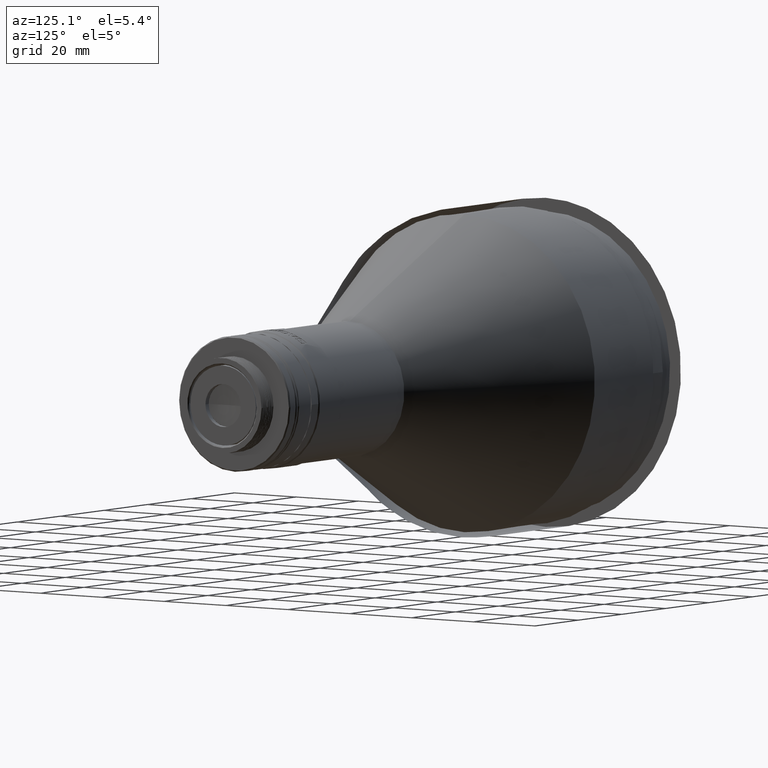
[diagram: clean part render]
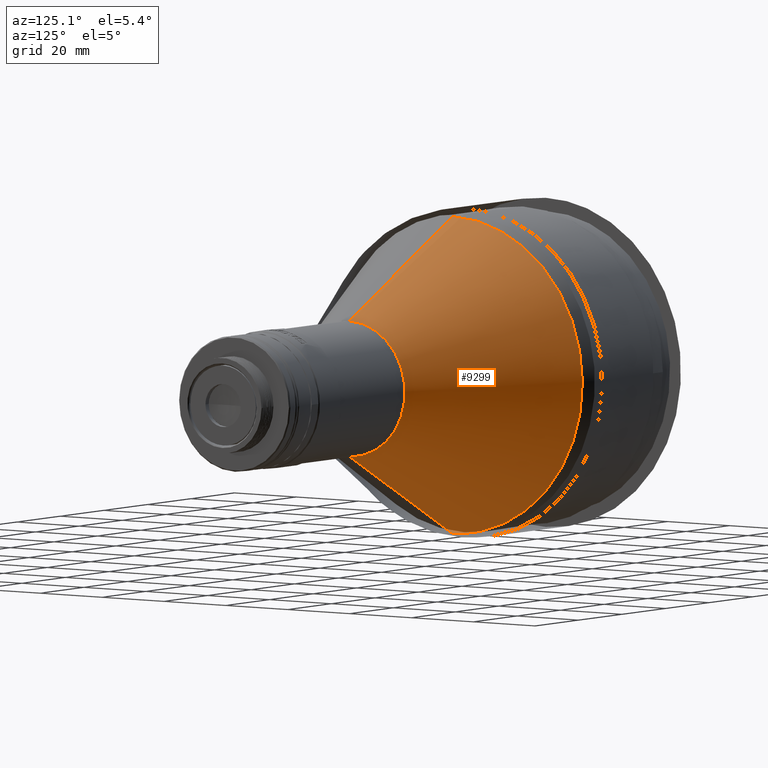
[diagram: same view with one face highlighted and labeled with its STEP entity id]
A machine part, auxiliary view. The second image highlights one B-rep face of the part: STEP entity #9299.
In plain terms, the highlighted conical surface has half-angle 26.96 deg.
Its self-contained STEP definition (entity closure, byte-faithful):
#12 = VERTEX_POINT ( 'NONE', #13295 ) ;
#224 = CARTESIAN_POINT ( 'NONE',  ( 18.97945200263147214, 25.66220231175445221, -130.6613263225026742 ) ) ;
#310 = CARTESIAN_POINT ( 'NONE',  ( 18.97945200263146504, 10.90798865403301043, -123.3870630619717161 ) ) ;
#394 = CARTESIAN_POINT ( 'NONE',  ( 18.97945200263146504, 41.79870194474690237, -169.6182825857016212 ) ) ;
#708 = CARTESIAN_POINT ( 'NONE',  ( 66.30158704593000607, 18.00003612463562064, -162.9291516847491152 ) ) ;
#1136 = EDGE_CURVE ( 'NONE', #14044, #12, #12214, .T. ) ;
#1584 = CARTESIAN_POINT ( 'NONE',  ( 18.97945200263146859, 13.55557670450494889, -124.1902001166408098 ) ) ;
#1680 = CARTESIAN_POINT ( 'NONE',  ( 18.97945200263146148, 21.08335280320911309, -200.6209934865545108 ) ) ;
#1763 = CARTESIAN_POINT ( 'NONE',  ( 18.97945200263147214, 18.64332168135331003, -126.2976130879470134 ) ) ;
#1809 = CARTESIAN_POINT ( 'NONE',  ( 66.30158704592999186, 14.30965264658306424, -153.1281147476998115 ) ) ;
#1899 = CARTESIAN_POINT ( 'NONE',  ( 66.30158704593000607, 2.352086199676878930, -146.2265965447369638 ) ) ;
#1943 = CARTESIAN_POINT ( 'NONE',  ( 18.97945200263147214, 27.80090747736658230, -132.4165162917562952 ) ) ;
#1998 = CARTESIAN_POINT ( 'NONE',  ( 66.30158704592999186, 1.182081923679699109, -146.1114151906819245 ) ) ;
#3041 = CARTESIAN_POINT ( 'NONE',  ( 18.97945200263147214, 21.08335280320920191, -127.6018368946455155 ) ) ;
#3137 = CARTESIAN_POINT ( 'NONE',  ( 18.97945200263146859, 10.90798865403293760, -204.8357673192282959 ) ) ;
#3176 = CARTESIAN_POINT ( 'NONE',  ( 66.30158704592997765, 7.980584661992640605, -180.2888474942251094 ) ) ;
#3180 = ORIENTED_EDGE ( 'NONE', *, *, #6504, .T. ) ;
#3219 = CARTESIAN_POINT ( 'NONE',  ( 18.97945200263146859, 39.92121507395917490, -150.5558384860950980 ) ) ;
#3262 = CARTESIAN_POINT ( 'NONE',  ( 66.30158704593000607, 17.08229761638240163, -169.9074617424242888 ) ) ;
#3978 = VECTOR ( 'NONE', #15026, 1000.000000000000114 ) ;
#4263 = AXIS2_PLACEMENT_3D ( 'NONE', #12881, #7196, #10089 ) ;
#4392 = CARTESIAN_POINT ( 'NONE',  ( 18.97945200263146859, 42.06988814078012240, -161.3579474505912685 ) ) ;
#4482 = CARTESIAN_POINT ( 'NONE',  ( 18.97945200263146148, 31.69489889884367173, -191.9123226679666061 ) ) ;
#4527 = CARTESIAN_POINT ( 'NONE',  ( 66.30158704593002028, 10.98326030337803161, -149.8018226173085452 ) ) ;
#4581 = CARTESIAN_POINT ( 'NONE',  ( 18.97945200263147569, 31.69489889884372857, -136.3105077132334202 ) ) ;
#5847 = CARTESIAN_POINT ( 'NONE',  ( 18.97945200263146148, 40.72435212862823306, -175.0194038446331035 ) ) ;
#5932 = CARTESIAN_POINT ( 'NONE',  ( 18.97945200263146504, 39.92121507395913937, -177.6669918951050136 ) ) ;
#6070 = CARTESIAN_POINT ( 'NONE',  ( 66.30158704592997765, 4.670997960418350026, -181.5349736026176402 ) ) ;
#6112 = CARTESIAN_POINT ( 'NONE',  ( 18.97945200263146859, 40.72435212862826148, -153.2034265365670365 ) ) ;
#6246 = CARTESIAN_POINT ( 'NONE',  ( 66.30158704592999186, 9.017227945625537089, -179.7346685868143084 ) ) ;
#6504 = EDGE_CURVE ( 'NONE', #16063, #12, #11066, .T. ) ;
#6775 = ORIENTED_EDGE ( 'NONE', *, *, #1136, .F. ) ;
#7115 = CARTESIAN_POINT ( 'NONE',  ( 18.97945200263146859, 42.06988814078011529, -166.8648829306088430 ) ) ;
#7196 = DIRECTION ( 'NONE',  ( -1.000000000000000000, 0.000000000000000000, 0.000000000000000000 ) ) ;
#7296 = CARTESIAN_POINT ( 'NONE',  ( 18.97945200263146504, 25.66220231175437405, -197.5615040586973521 ) ) ;
#7340 = CARTESIAN_POINT ( 'NONE',  ( 66.30158704592997765, 9.017268085236654684, -148.4881017211360472 ) ) ;
#7384 = EDGE_CURVE ( 'NONE', #17277, #14044, #8241, .T. ) ;
#7426 = CARTESIAN_POINT ( 'NONE',  ( 66.30158704593000607, 11.89190997511070691, -177.6752982500184146 ) ) ;
#7521 = CARTESIAN_POINT ( 'NONE',  ( 66.30158704592999186, 4.671165392871821531, -146.6879637421073994 ) ) ;
#7607 = CARTESIAN_POINT ( 'NONE',  ( 66.30158704592999186, 5.796046551686935722, -147.0291175741595282 ) ) ;
#7807 = CARTESIAN_POINT ( 'NONE',  ( 18.97945200263105292, 2.619185434200414906E-14, -122.0415270498203881 ) ) ;
#7997 = CARTESIAN_POINT ( 'NONE',  ( 66.30158704593159769, 3.130938416522670205E-16, -182.1114151905180165 ) ) ;
#8232 = CARTESIAN_POINT ( 'NONE',  ( 18.97945200262620347, 0.000000000000000000, -122.0415270498171907 ) ) ;
#8241 = B_SPLINE_CURVE_WITH_KNOTS ( 'NONE', 3,
 ( #11415, #1998, #1899, #7521, #7607, #15676, #7340, #4527, #10230, #13127, #1809, #11772, #14411, #17040, #17120, #10142, #708, #14499, #14228, #8965, #3262, #11684, #17297, #15857, #11594, #7426, #10412, #6246, #3176, #12857, #6070, #17207, #12951, #10316 ),
 .UNSPECIFIED., .F., .F.,
 ( 4, 2, 2, 2, 2, 2, 2, 2, 2, 2, 2, 2, 2, 2, 2, 2, 4 ),
 ( 0.000000000000000000, 0.06250000000000001388, 0.1250000000000000000, 0.1874999999999999722, 0.2499999999999999722, 0.3124999999999999445, 0.3749999999999999445, 0.4375000000000000000, 0.5000000000000000000, 0.5625000000000000000, 0.6250000000000000000, 0.6875000000000000000, 0.7500000000000000000, 0.8125000000000001110, 0.8750000000000001110, 0.9375000000000000000, 1.000000000000000000 ),
 .UNSPECIFIED. ) ;
#8551 = FACE_OUTER_BOUND ( 'NONE', #15593, .T. ) ;
#8569 = CARTESIAN_POINT ( 'NONE',  ( 18.97945200263147214, 33.45008886809729631, -138.4492128788455716 ) ) ;
#8667 = CARTESIAN_POINT ( 'NONE',  ( 18.97945200263146504, 5.506867395101495255, -205.9101171353468942 ) ) ;
#8743 = CARTESIAN_POINT ( 'NONE',  ( 18.97945200263146148, 33.45008886809723947, -189.7736175023544831 ) ) ;
#8965 = CARTESIAN_POINT ( 'NONE',  ( 66.30158704592999186, 17.42345144851313421, -168.7825805834192181 ) ) ;
#9057 = ORIENTED_EDGE ( 'NONE', *, *, #17607, .T. ) ;
#9299 = ADVANCED_FACE ( 'NONE', ( #8551 ), #12645, .F. ) ;
#9588 = LINE ( 'NONE', #8232, #15188 ) ;
#9660 = CARTESIAN_POINT ( 'NONE',  ( 18.97945200262620347, 5.152075385209685475E-15, -206.1813033313827930 ) ) ;
#10008 = CARTESIAN_POINT ( 'NONE',  ( 18.97945200263146504, 18.64332168135323897, -201.9252172932530414 ) ) ;
#10089 = DIRECTION ( 'NONE',  ( 0.000000000000000000, 0.000000000000000000, 1.000000000000000000 ) ) ;
#10142 = CARTESIAN_POINT ( 'NONE',  ( 66.30158704593002028, 17.88474778464811976, -161.7593430860088404 ) ) ;
#10186 = CARTESIAN_POINT ( 'NONE',  ( 18.97945200263147214, 5.506867395101581408, -122.3127132458531179 ) ) ;
#10230 = CARTESIAN_POINT ( 'NONE',  ( 66.30158704592999186, 11.89196106324948232, -150.5474810431861670 ) ) ;
#10316 = CARTESIAN_POINT ( 'NONE',  ( 66.30158704593159769, 3.130938416522670205E-16, -182.1114151905180165 ) ) ;
#10412 = CARTESIAN_POINT ( 'NONE',  ( 66.30158704593002028, 10.98330044298912966, -178.4210678371412655 ) ) ;
#11066 = B_SPLINE_CURVE_WITH_KNOTS ( 'NONE', 3,
 ( #15721, #15454, #10186, #310, #1584, #1763, #3041, #224, #1943, #4581, #8569, #12814, #17080, #3219, #6112, #14273, #4392, #7115, #394, #5847, #5932, #16903, #11453, #8743, #4482, #14088, #7296, #1680, #10008, #15546, #3137, #8667, #14185, #16991 ),
 .UNSPECIFIED., .F., .F.,
 ( 4, 2, 2, 2, 2, 2, 2, 2, 2, 2, 2, 2, 2, 2, 2, 2, 4 ),
 ( 0.000000000000000000, 0.06249999999999998612, 0.1250000000000000000, 0.1875000000000000000, 0.2500000000000000555, 0.3125000000000000555, 0.3750000000000000000, 0.4375000000000000000, 0.5000000000000000000, 0.5625000000000000000, 0.6250000000000000000, 0.6875000000000000000, 0.7499999999999998890, 0.8124999999999998890, 0.8749999999999998890, 0.9375000000000000000, 1.000000000000000000 ),
 .UNSPECIFIED. ) ;
#11415 = CARTESIAN_POINT ( 'NONE',  ( 66.30158704593119978, -1.102182119227605883E-15, -146.1114151906819814 ) ) ;
#11453 = CARTESIAN_POINT ( 'NONE',  ( 18.97945200263146504, 36.50957829595446924, -185.1947679938092506 ) ) ;
#11594 = CARTESIAN_POINT ( 'NONE',  ( 66.30158704593000607, 13.56393414748917436, -176.0033762537816528 ) ) ;
#11684 = CARTESIAN_POINT ( 'NONE',  ( 66.30158704592999186, 16.17736555387257624, -172.0919722038563862 ) ) ;
#11772 = CARTESIAN_POINT ( 'NONE',  ( 66.30158704593002028, 15.62325339617237141, -155.0941872448855463 ) ) ;
#12214 = LINE ( 'NONE', #9660, #3978 ) ;
#12487 = DIRECTION ( 'NONE',  ( -0.8913258760542103198, 0.000000000000000000, 0.4533631906939452061 ) ) ;
#12645 = CONICAL_SURFACE ( 'NONE', #4263, 42.06988814078280114, 0.4705349788148567858 ) ;
#12814 = CARTESIAN_POINT ( 'NONE',  ( 18.97945200263147214, 36.50957829595451898, -143.0280623873908326 ) ) ;
#12857 = CARTESIAN_POINT ( 'NONE',  ( 66.30158704592999186, 5.796018903087922780, -181.1936460572298415 ) ) ;
#12881 = CARTESIAN_POINT ( 'NONE',  ( 18.97945200262620347, 0.000000000000000000, -164.1114151905999847 ) ) ;
#12951 = CARTESIAN_POINT ( 'NONE',  ( 66.30158704592999186, 1.181711700038899027, -182.1114151905181302 ) ) ;
#13127 = CARTESIAN_POINT ( 'NONE',  ( 66.30158704592999186, 13.56388305935039540, -152.2195052154139034 ) ) ;
#13295 = CARTESIAN_POINT ( 'NONE',  ( 18.97945200263130161, 2.018220086284344943E-14, -206.1813033313800076 ) ) ;
#14044 = VERTEX_POINT ( 'NONE', #7997 ) ;
#14088 = CARTESIAN_POINT ( 'NONE',  ( 18.97945200263146859, 27.80090747736652190, -195.8063140894437879 ) ) ;
#14185 = CARTESIAN_POINT ( 'NONE',  ( 18.97945200263146504, 2.753467740008646913, -206.1813033313800929 ) ) ;
#14228 = CARTESIAN_POINT ( 'NONE',  ( 66.30158704593000607, 17.88481864584249692, -166.4635013903295260 ) ) ;
#14273 = CARTESIAN_POINT ( 'NONE',  ( 18.97945200263146859, 41.79870194474691658, -158.6045477954984619 ) ) ;
#14411 = CARTESIAN_POINT ( 'NONE',  ( 66.30158704592999186, 16.17743230363680240, -156.1308305286477776 ) ) ;
#14499 = CARTESIAN_POINT ( 'NONE',  ( 66.30158704592999186, 17.99996387520057795, -165.2936786964509110 ) ) ;
#15026 = DIRECTION ( 'NONE',  ( -0.8913258760542103198, 5.552097803345710150E-17, -0.4533631906939452061 ) ) ;
#15188 = VECTOR ( 'NONE', #12487, 1000.000000000000114 ) ;
#15454 = CARTESIAN_POINT ( 'NONE',  ( 18.97945200263147214, 2.753467740008735287, -122.0415270498199050 ) ) ;
#15546 = CARTESIAN_POINT ( 'NONE',  ( 18.97945200263146504, 13.55557670450487251, -204.0326302645591454 ) ) ;
#15593 = EDGE_LOOP ( 'NONE', ( #6775, #15661, #9057, #3180 ) ) ;
#15661 = ORIENTED_EDGE ( 'NONE', *, *, #7384, .F. ) ;
#15676 = CARTESIAN_POINT ( 'NONE',  ( 66.30158704593000607, 7.980557013393624111, -147.9340496367855451 ) ) ;
#15721 = CARTESIAN_POINT ( 'NONE',  ( 18.97945200263105292, 2.619185434200414906E-14, -122.0415270498203881 ) ) ;
#15857 = CARTESIAN_POINT ( 'NONE',  ( 66.30158704592999186, 14.30959257337771717, -175.0946754938992456 ) ) ;
#16063 = VERTEX_POINT ( 'NONE', #7807 ) ;
#16903 = CARTESIAN_POINT ( 'NONE',  ( 18.97945200263146148, 37.81380210265295716, -182.7547368719533267 ) ) ;
#16991 = CARTESIAN_POINT ( 'NONE',  ( 18.97945200263130161, 2.018220086284344943E-14, -206.1813033313800076 ) ) ;
#17040 = CARTESIAN_POINT ( 'NONE',  ( 66.30158704593000607, 17.08223086661817902, -158.3153962874716854 ) ) ;
#17080 = CARTESIAN_POINT ( 'NONE',  ( 18.97945200263147569, 37.81380210265299979, -145.4680935092467848 ) ) ;
#17120 = CARTESIAN_POINT ( 'NONE',  ( 66.30158704593000607, 17.42352230970752558, -159.4402357026424681 ) ) ;
#17207 = CARTESIAN_POINT ( 'NONE',  ( 66.30158704592997765, 2.352253632130348660, -181.9961268729380492 ) ) ;
#17277 = VERTEX_POINT ( 'NONE', #17619 ) ;
#17297 = CARTESIAN_POINT ( 'NONE',  ( 66.30158704593000607, 15.62331346937770959, -173.1286832759154208 ) ) ;
#17607 = EDGE_CURVE ( 'NONE', #17277, #16063, #9588, .T. ) ;
#17619 = CARTESIAN_POINT ( 'NONE',  ( 66.30158704593119978, -1.102182119227605883E-15, -146.1114151906819814 ) ) ;